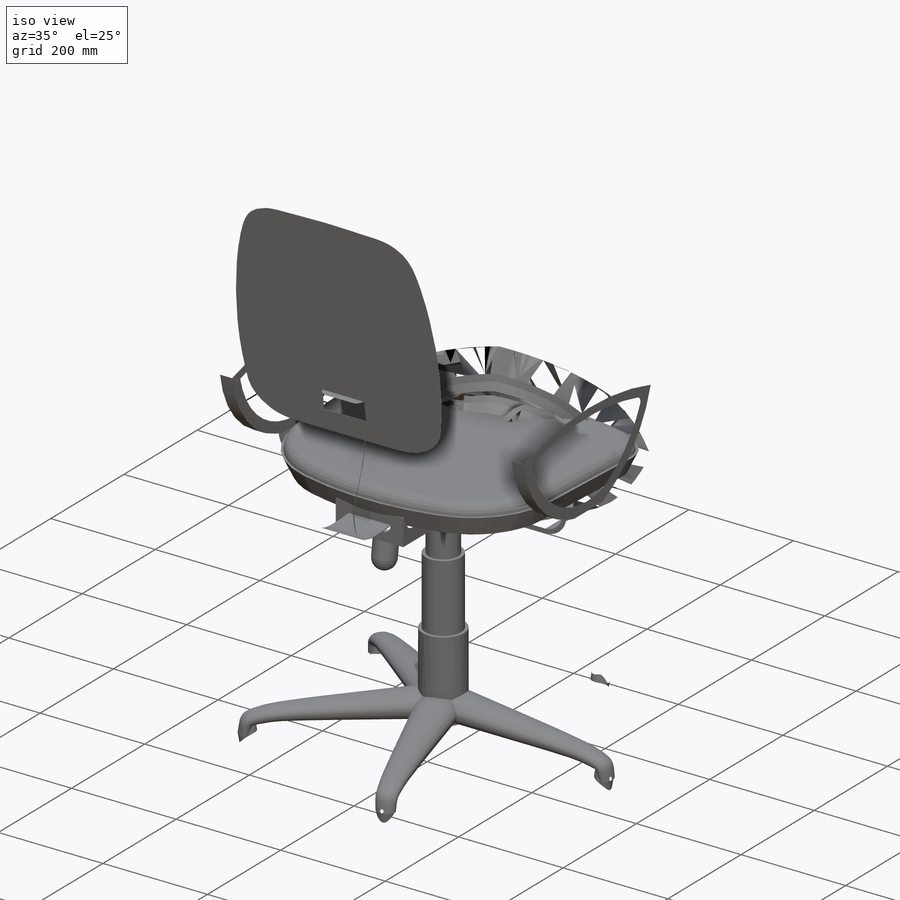
[diagram: iso view]
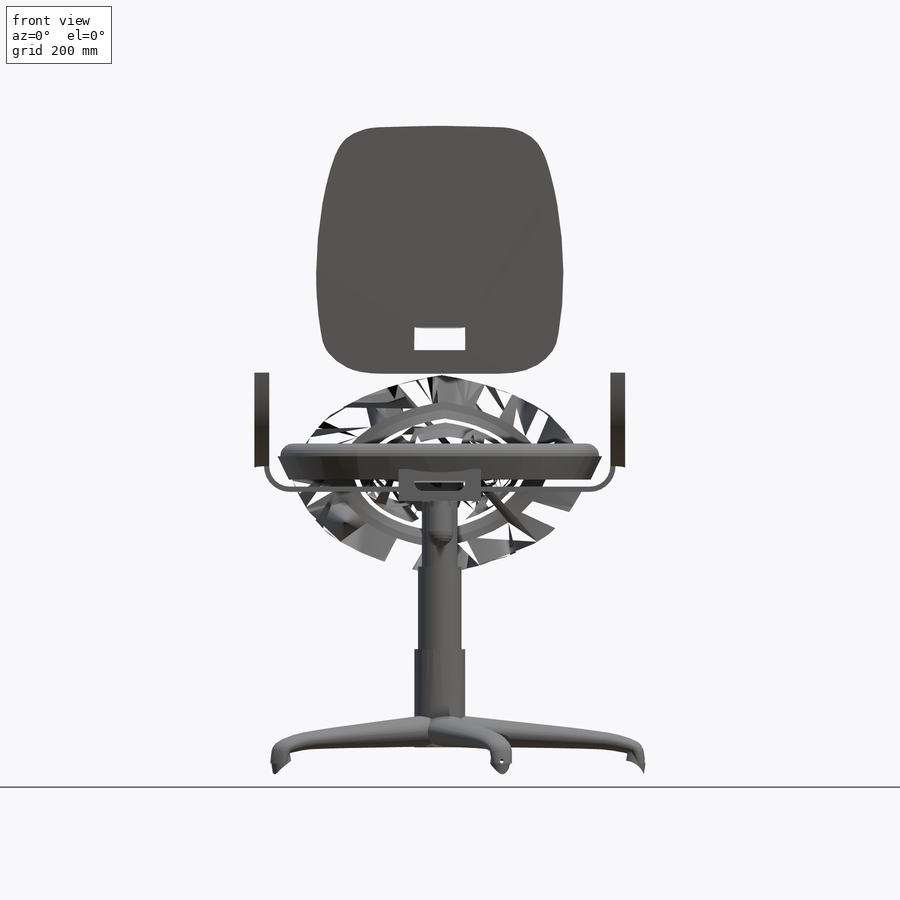
[diagram: front view]
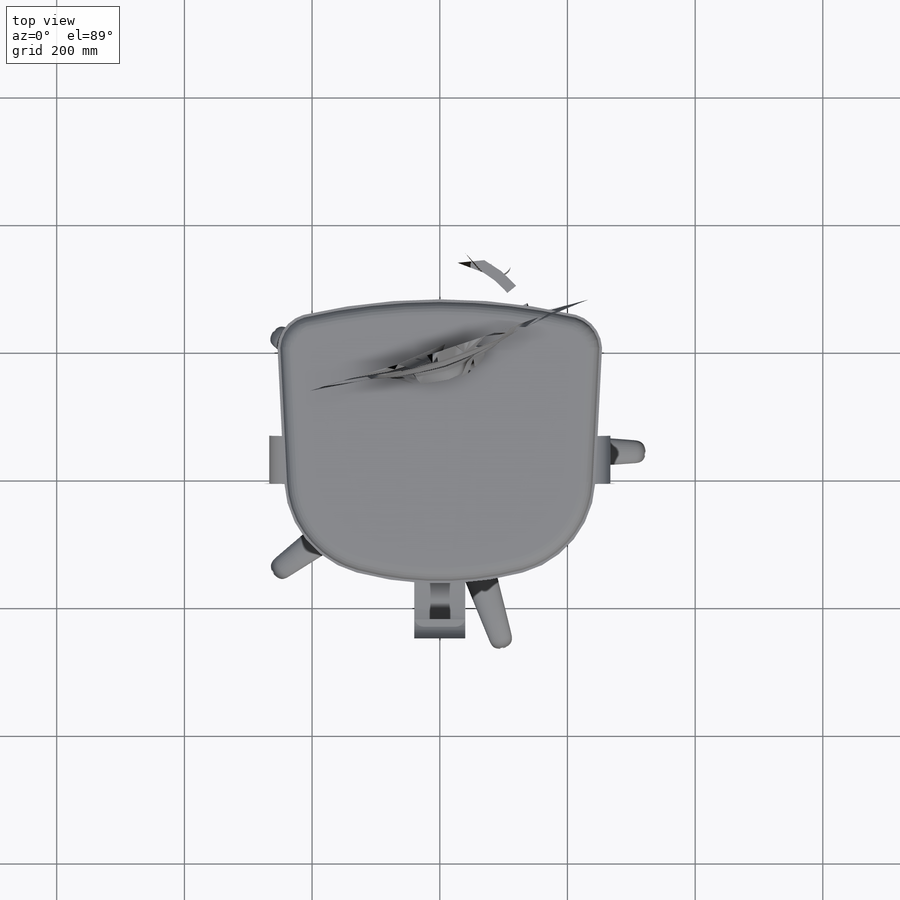
[diagram: top view]
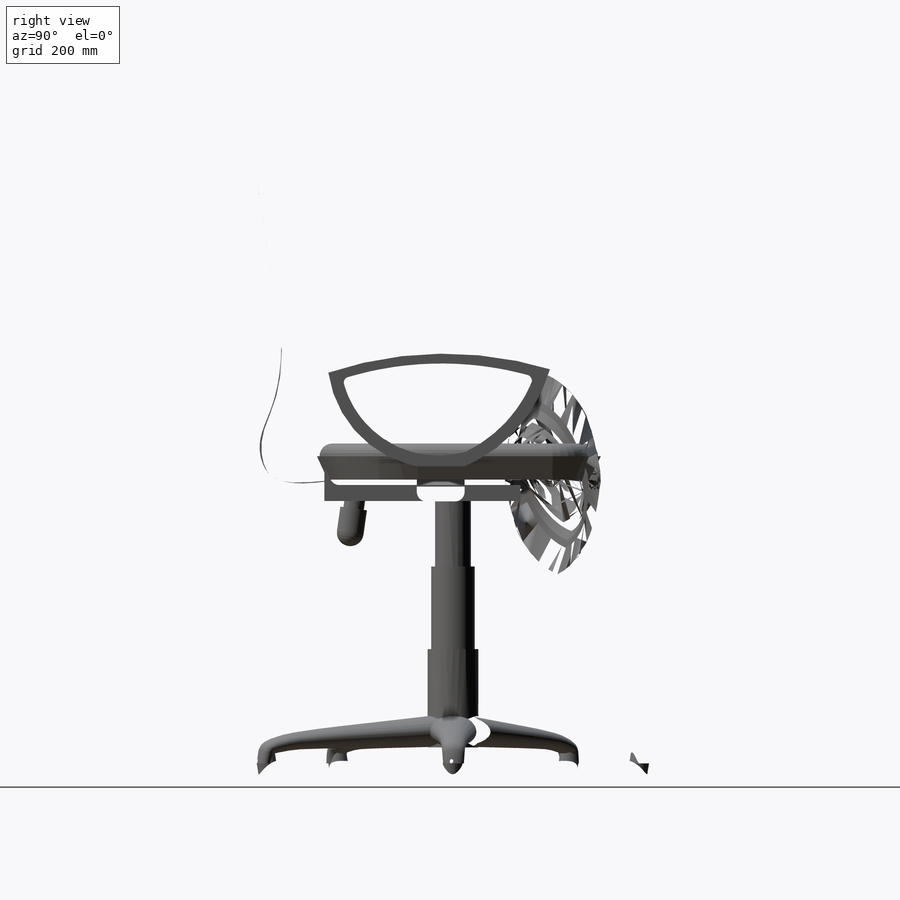
[diagram: right view]
SOLIDWORKS PART (.sldprt)
format: sldprt  version: not decoded by parser v0  size: 2,278,400 bytes
history: native  units: mm
features: sketch x22, extrude x14, fillet x8, plane x7, pattern_circular x3, cut_extrude x3, revolve x2, dome x2, material x1, move_body x1 (+9 scaffold rows collapsed; 1 parser-record rows omitted)
feature tree (73):
  scaffold x9  (default folders/planes/origin — collapsed)
  material  "AISI 1020 Acero laminado en frío"
  plane  "Alzado"
  plane  "Planta"
  plane  "Vista lateral"
  parser-record x1  (decoder bookkeeping rows leaked as tree rows — omitted from the tree; the rows remain in map.json)
  sketch  "Croquis1"  dims[D4=140.0mm D1=450.0mm D2=480.0mm D3=300.0mm]
  extrude  "Saliente-Extruir1"  Depth=49mm
  fillet  "Redondeo1"  Radius=20mm
  sketch  "Croquis2"  dims[D1=0.0mm]
  extrude  "Saliente-Extruir2"  Depth=29mm
  sketch  "Croquis3"  dims[D1=0.0mm]
  extrude  "Saliente-Extruir3"  Depth=45mm
  sketch  "Croquis4"
  extrude  "Saliente-Extruir4"  Depth=50mm
  sketch  "Croquis6"
  revolve  "Revolución1"  Angle=360deg
  sketch  "Croquis7"  dims[D1=470.0mm]
  revolve  "Revolución2"  Angle=360deg
  sketch  "Croquis8"
  plane  "Plano1"  Offset=155.1mm
  sketch  "Croquis10"
  plane  "Plano2"
  sketch  "Croquis11"
  pattern_circular  "MatrizC1"  Count=5 Angle=360deg
  sketch  "Croquis13"
  extrude  "Saliente-Extruir5"  Depth=80mm
  sketch  "Croquis14"
  extrude  "Saliente-Extruir6"  Depth=390mm
  sketch  "Croquis16"
  cut_extrude  "Cortar-Extruir1"  Depth=64mm
  fillet  "Redondeo2"  Radius=30mm
  sketch  "Croquis17"  dims[D1=0.0mm]
  extrude  "Saliente-Extruir7"  Depth=24mm
  fillet  "Redondeo3"  Radius=30mm
  sketch  "Croquis18"
  extrude  "Saliente-Extruir8"  Depth=34mm
  pattern_circular  "MatrizC2"  Count=5 Angle=72deg
  sketch  "Croquis19"
  extrude  "Saliente-Extruir9"  Depth=50mm
  fillet  "Redondeo4"  Radius=10mm
  pattern_circular  "MatrizC3"  Count=5 Angle=72deg
  move_body  "Sólido-Mover/Copiar1"
  sketch  "Croquis20"  dims[D1=75.0mm]
  extrude  "Saliente-Extruir10"  Depth=470mm
  sketch  "Croquis21"
  extrude  "Saliente-Extruir11"  Depth=75mm
  sketch  "Croquis22"  dims[D1=185.0mm]
  extrude  "Saliente-Extruir12"  Depth=209mm
  sketch  "Croquis23"  dims[D1=25.0mm]
  cut_extrude  "Cortar-Extruir5"  Depth=33mm
  sketch  "Croquis25"  dims[D1=0.0mm]
  cut_extrude  "Cortar-Extruir6"  Depth=33mm
  fillet  "Redondeo12"  Radius=5mm
  fillet  "Redondeo13"  Radius=5mm
  plane  "Plano3"
  sketch  "Croquis26"
  extrude  "Saliente-Extruir13"  Depth=70mm
  plane  "Plano4"
  sketch  "Croquis27"  dims[D1=0.0mm]
  extrude  "Saliente-Extruir14"  Depth=70mm
  dome  "Cúpula1"
  dome  "Cúpula2"
  fillet  "Redondeo14"  Radius=5mm
  fillet  "Redondeo15"  Radius=15mm
decode coverage: 40 of 55 modeling features carry decoded parameters
note: suppression state not decoded; provenance and decode notes live in map.json
